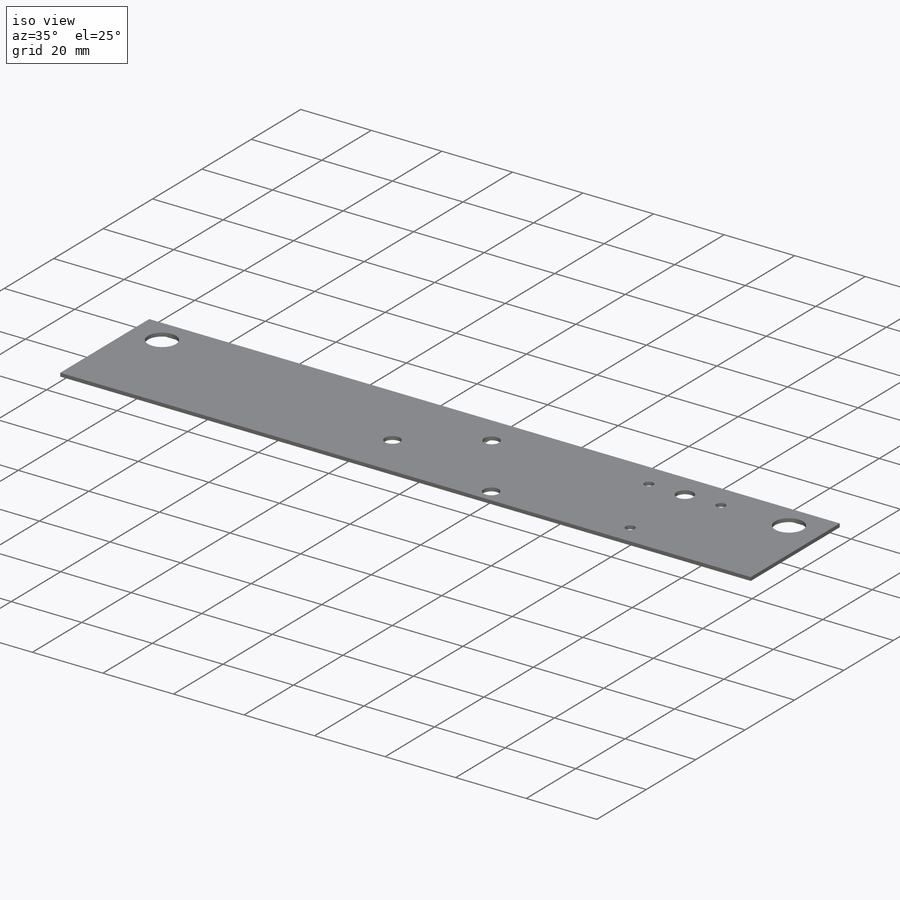
[diagram: iso view]
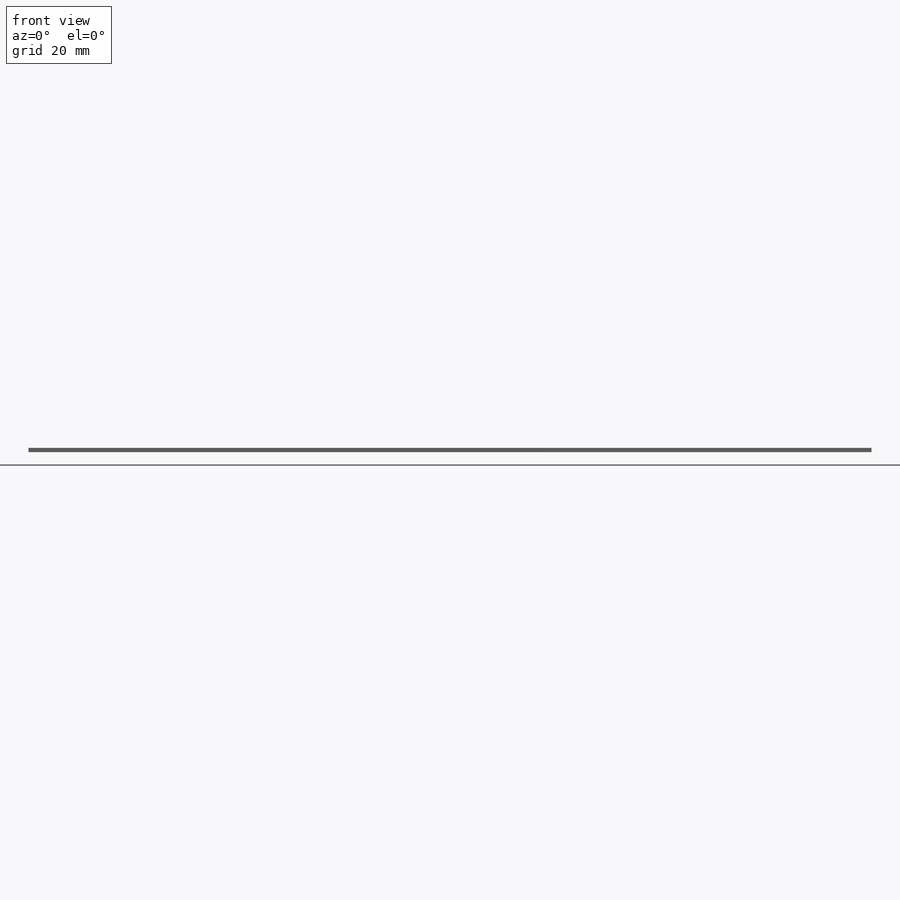
[diagram: front view]
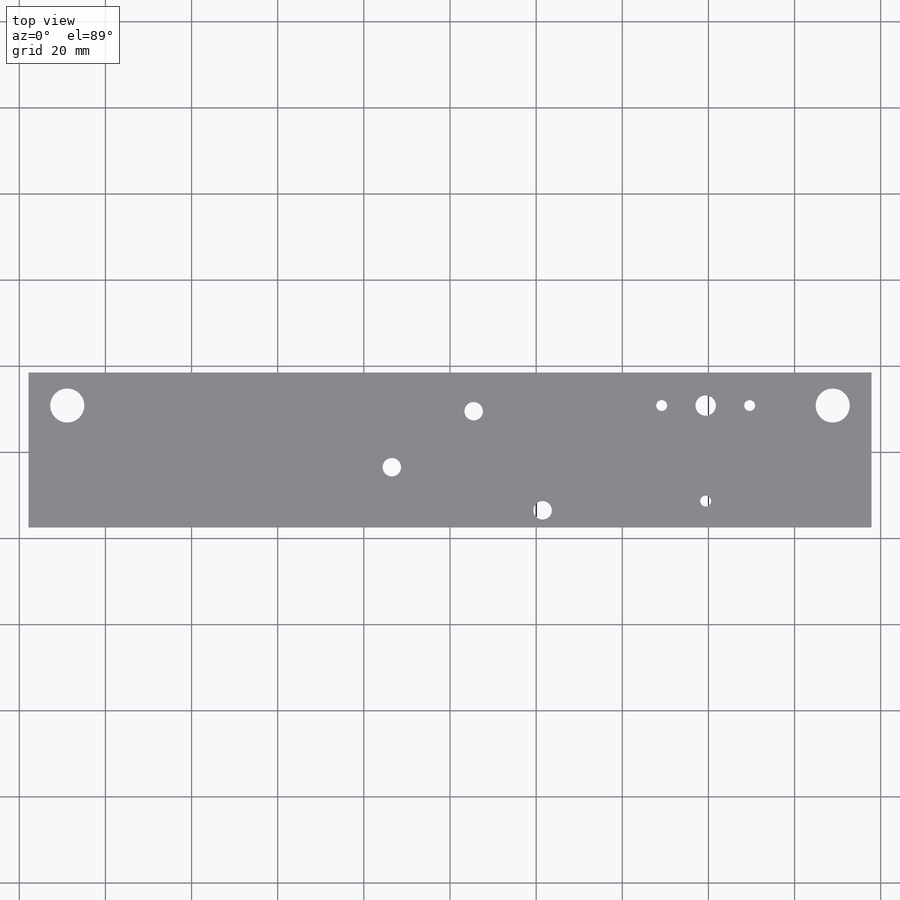
[diagram: top view]
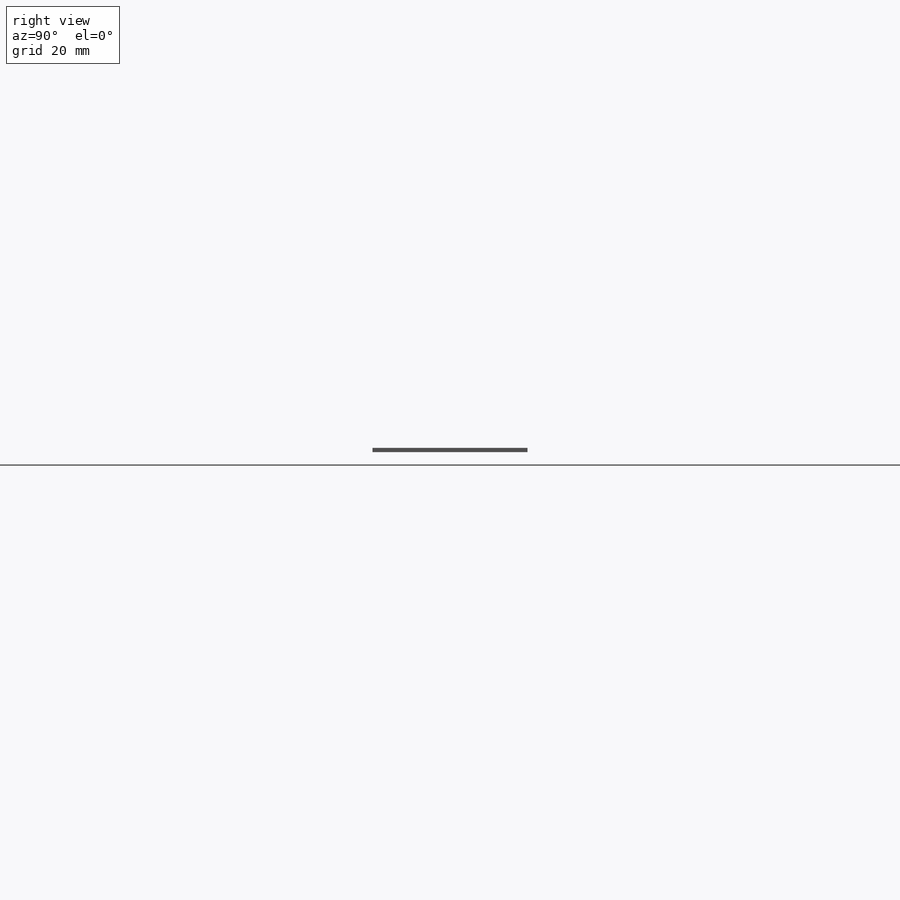
[diagram: right view]
SOLIDWORKS PART (.sldprt)
format: sldprt  version: not decoded by parser v0  size: 518,656 bytes
history: native  units: mm
features: sketch x32, sheet_metal_op x10, extrude x7, cut_extrude x5, material x1 + 13 further entries (+13 scaffold rows collapsed; 8 parser-record rows omitted)
feature tree (89):
  scaffold x13  (default folders/planes/origin — collapsed)
  material  "Material <not specified>"
  sketch  "Sketch1"  dims[c1.D1=75.0mm c1.D2=37.0mm c2.D1=1.0mm c2.D2=0.5 c2.D3=0.0mm c2.D6=500.0mm]
  sheet_metal_op  "Base-Flange1"
  sketch  "Sketch8"  dims[c1.D1=1.0mm c1.D4=90.0deg c1.D5=1.0 c1.D8=0.5mm c1.D9=0.5mm c2.D1=1.0mm c2.D2=500.0mm c2.D3=0.0mm c2.D6=10.0mm c2.D7=60.0mm c2.Edge-Flange3=0.0]
  sketch  "Sketch14"  dims[D1=60.0mm D2=37.0mm D3=0.0mm]
  sheet_metal_op  "EdgeBend3"
  sketch  "Sketch15"  dims[c1.D2=7.95mm c1.D5=4.7498mm c1.D7=2.54mm c1.D8=2.54mm c1.D9=2.54mm c1.D1=29.5mm c1.D3=22.1742mm c2.D1=~26.28773mm c2.D3=~12.525028mm c2.D4=29.5mm c2.D6=10.21mm c2.D10=10.21mm c2.D11=22.17mm c2.D12=22.17mm c3.D11=22.17mm c3.D12=~13.21227mm c3.D1=~4.413553mm c3.D4=29.5mm c3.D6=10.21mm c3.D10=10.21mm c4.D11=22.17mm c4.D12=0.0mm c4.D13=~12.93082mm c4.D3=~5.059335mm c5.D13=~14.876447mm c5.D3=~7.674594mm c6.D13=50.0mm c6.D4=29.5mm]
  cut_extrude  "Cut-Extrude4"  Depth=3mm
  sketch  "Sketch19"  dims[c1.D2=7.95mm c1.D1=14.88mm c1.D3=12.93mm c2.D1=7.67mm c2.D3=50.0mm]
  cut_extrude  "Cut-Extrude5"  [1 undecoded]
  sketch  "Sketch20"  dims[D1=~10.757183mm]
  sketch  "Sketch21"  dims[c1.D1=4.3mm c1.4.3=4.3mm c1.D2=4.3mm c1.D3=31.0mm c1.D4=28.0mm c1.D5=50.0mm c1.D6=15.0mm c1.D7=15.0mm c1.D8=5.0mm c2.D6=10.0mm c2.D9=37.0mm c2.5=5.0mm c3.D6=15.0mm]
  cut_extrude  "Cut-Extrude6"  Depth=10mm
  sketch  "Sketch24"  dims[D1=1.0mm]
  cut_extrude  "Cut-Extrude7"  Depth=10mm
  sketch  "Sketch25"  dims[D1=1.0mm]
  cut_extrude  "Cut-Extrude8"  Depth=89mm
  sketch  "Bend-Lines1"
  sketch  "Bounding-Box1"
  sketch  "Sketch16"
  sketch  "Sketch23"  dims[D1=37.0mm]
  sheet_metal_op  "Sheet-Metal(1)"
  "Flat-Pattern(1)"
  sketch  "Bend-Lines2"
  sketch  "Bounding-Box2"
  parser-record x8  (decoder bookkeeping rows leaked as tree rows — omitted from the tree; the rows remain in map.json)
  extrude  "Sheet-Metal(2)"  Depth=1mm
  sheet_metal_op  "Flat-Pattern(1)"
  sketch  "Bend-Lines2"
  sketch  "Bounding-Box2"
  extrude  "Sheet-Metal(4)"  Depth=1mm
  sheet_metal_op  "Flat-Pattern(1)"
  sketch  "Bend-Lines2"
  sketch  "Bounding-Box2"
  "Flatten-<EdgeBend3>1"
  "Flatten-<EdgeBend1>1"
  extrude  "Sheet-Metal(8)"  Depth=1mm
  sheet_metal_op  "Flat-Pattern(1)"
  sketch  "Bend-Lines2"
  sketch  "Bounding-Box2"
  "Flatten-<EdgeBend3>1"
  "Flatten-<EdgeBend1>1"
  extrude  "Sheet-Metal(9)"  Depth=1mm
  sheet_metal_op  "Flat-Pattern(1)"
  sketch  "Bend-Lines2"
  sketch  "Bounding-Box2"
  "Flatten-<EdgeBend3>1"
  "Flatten-<EdgeBend1>1"
  extrude  "Sheet-Metal(10)"  Depth=1mm
  sheet_metal_op  "Flat-Pattern(1)"
  sketch  "Bend-Lines2"
  sketch  "Bounding-Box2"
  "Flatten-<EdgeBend3>1"
  "Flatten-<EdgeBend1>1"
  sketch  "Sketch20-1"  dims[D1=~10.757183mm]
  extrude  "Sheet-Metal(11)"  Depth=1mm
  sheet_metal_op  "Flat-Pattern(1)"
  sketch  "Bend-Lines2"
  sketch  "Bounding-Box2"
  "Flatten-<EdgeBend3>1"
  "Flatten-<EdgeBend1>1"
  sketch  "Sketch20-1"  dims[D1=~10.757183mm]
  extrude  "Sheet-Metal(12)"  Depth=1mm
  sheet_metal_op  "Flat-Pattern(1)"
  sketch  "Bend-Lines2"
  sketch  "Bounding-Box2"
  "Flatten-<EdgeBend3>1"
  "Flatten-<EdgeBend1>1"
  sketch  "Sketch20-1"  dims[D1=~10.757183mm]
decode coverage: 24 of 54 modeling features carry decoded parameters; 13 rows unclassified (native names shown)
note: ~ marks probable driven/reference dimensions
note: 1 parameter value undecoded
note: suppression state not decoded; provenance and decode notes live in map.json
